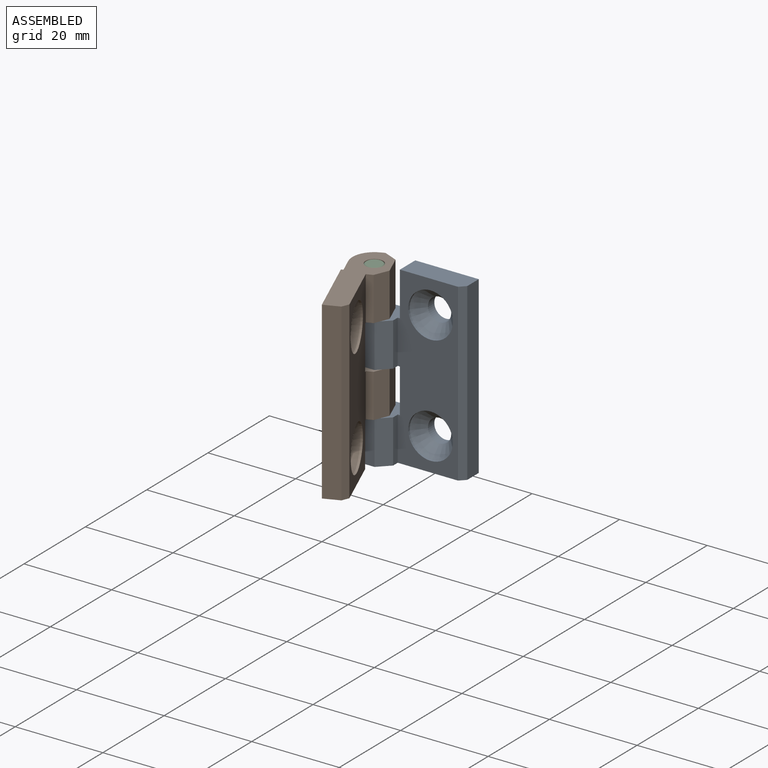
[diagram: assembled view]
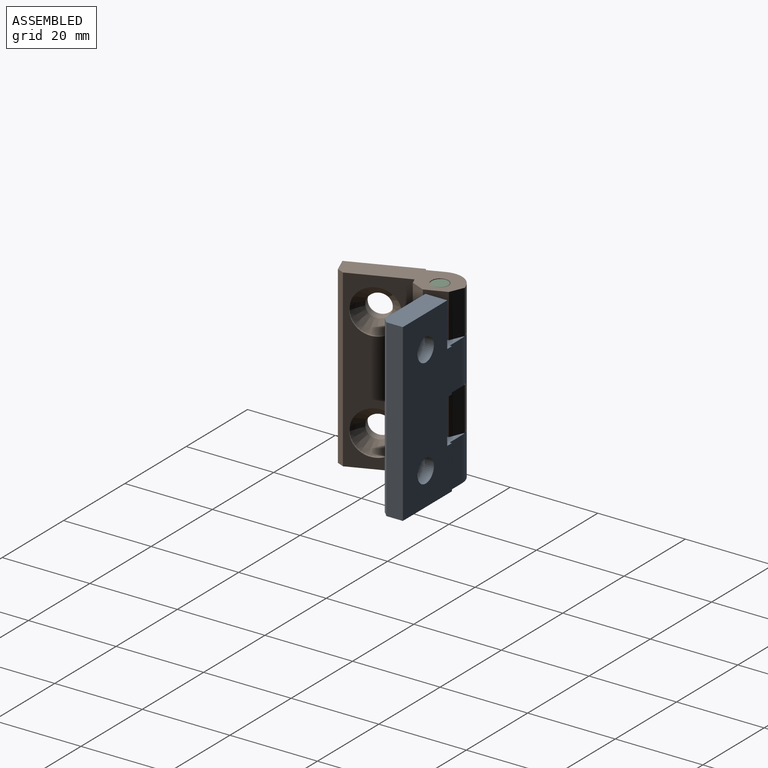
[diagram: assembled view, second angle]
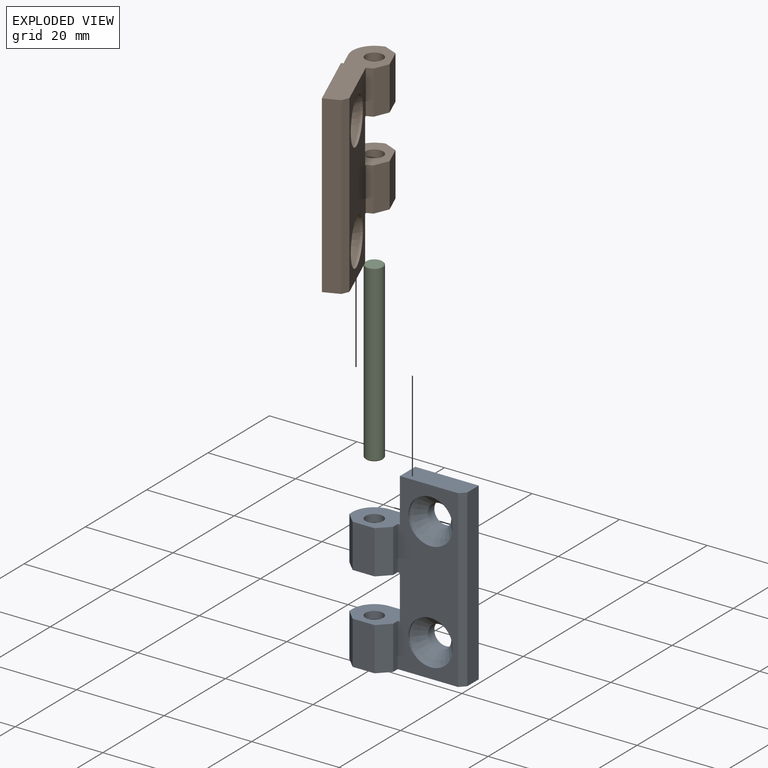
[diagram: exploded view]
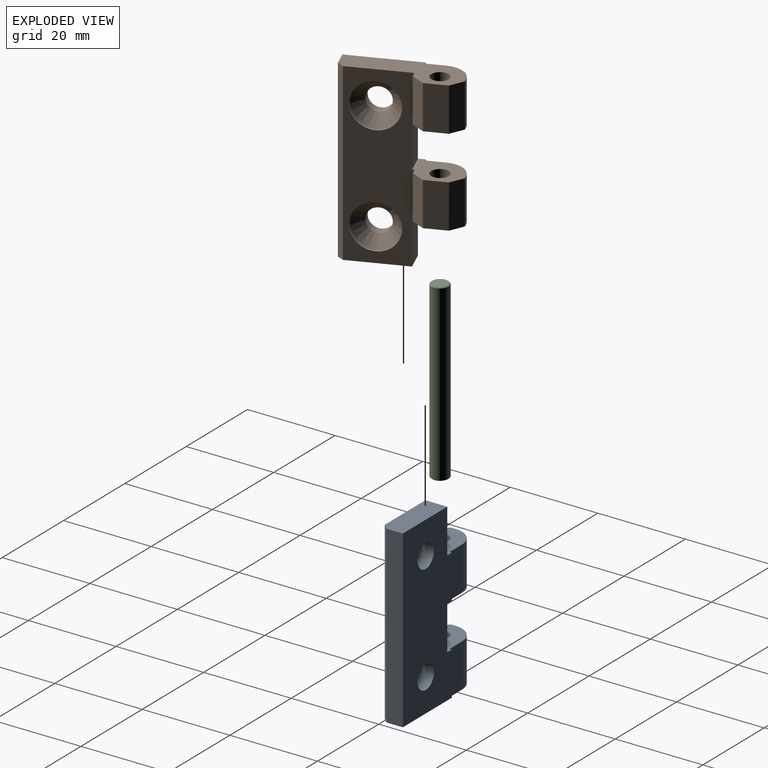
[diagram: exploded view, second angle]
ASSEMBLY  parts=3 mates=2
PART A: 35 faces, bbox 25x9x40 mm
  f0: cylinder r=2.65mm len=5.3mm, axis (0,-1,0), area 34.1mm2, adj f15,f33
  f1: cylinder r=2.65mm len=5.3mm, axis (0,-1,0), area 34.1mm2, adj f15,f31
  f2: cylinder r=5mm len=9.95mm, axis (0,0,1), area 78.1mm2, adj f4,f19,f26,f27
  f3: cylinder r=5mm len=9.95mm, axis (0,0,1), area 78.1mm2, adj f5,f20,f24,f28
  f4: plane 9.95x1mm, normal (-1,0,0), area 10mm2, adj f2,f6,f26,f27
  f5: plane 9.95x1mm, normal (-1,0,0), area 10mm2, adj f3,f7,f24,f28
  f6: plane 9.95x2.5mm, normal (-0.71,-0.71,0), area 35.2mm2, adj f4,f8,f26,f27
  f7: plane 9.95x2.5mm, normal (-0.71,-0.71,0), area 35.2mm2, adj f5,f9,f24,f28
  f8: plane 9.95x5mm, normal (0,-1,0), area 49.8mm2, adj f6,f10,f26,f27
  f9: plane 9.95x5mm, normal (0,-1,0), area 49.8mm2, adj f7,f11,f24,f28
  f10: plane 9.95x2.5mm, normal (0.71,-0.71,0), area 35.2mm2, adj f8,f12,f26,f27
  f11: plane 9.95x2.5mm, normal (0.71,-0.71,0), area 35.2mm2, adj f9,f13,f24,f28
  f12: plane 9.95x1.5mm, normal (1,0,0), area 14.9mm2, adj f10,f14,f26,f27
  f13: plane 9.95x1.5mm, normal (1,0,0), area 14.9mm2, adj f11,f14,f24,f28
  f14: plane 40x13.75mm, normal (0,-1,0), area 376.5mm2, adj f12,f13,f21,f22,f24,f25,f26,f27
  f15: plane 40x16mm, normal (0,1,0), area 565.7mm2, adj f0,f1,f16,f17,f21,f23,f24,f25
  f16: plane 9.95x0.5mm, normal (-1,0,0), area 5mm2, adj f15,f19,f26,f27
  f17: plane 9.95x0.5mm, normal (-1,0,0), area 5mm2, adj f15,f20,f24,f28
  f18: cylinder r=2mm len=9.95mm, axis (0,0,1), area 125mm2, adj f24,f28
  f19: plane 9.95x4mm, normal (0,1,0), area 39.8mm2, adj f2,f16,f26,f27
  f20: plane 9.95x4mm, normal (0,1,0), area 39.8mm2, adj f3,f17,f24,f28
  f21: plane 14.5x5mm, normal (0,0,1), area 71.7mm2, adj f14,f15,f22,f23,f25
  f22: plane 40x1.25mm, normal (0.71,-0.71,0), area 70.7mm2, adj f14,f21,f23,f24
  f23: plane 40x3.75mm, normal (1,0,0), area 150mm2, adj f15,f21,f22,f24
  f24: plane 25x9mm, normal (0,0,-1), area 135.5mm2, adj f3,f5,f7,f9,f11,f13,f14,f15
  f25: plane 10.05x5mm, normal (-1,0,0), area 50.2mm2, adj f14,f15,f21,f26
  f26: plane 10.5x9mm, normal (0,0,1), area 63.8mm2, adj f2,f4,f6,f8,f10,f12,f14,f15
  f27: plane 10.5x9mm, normal (0,0,-1), area 63.8mm2, adj f2,f4,f6,f8,f10,f12,f14,f15
  f28: plane 10.5x9mm, normal (0,0,1), area 63.8mm2, adj f3,f5,f7,f9,f11,f13,f14,f15
  f29: plane 10.05x5mm, normal (-1,0,0), area 50.2mm2, adj f14,f15,f27,f28
  f30: cylinder r=2mm len=9.95mm, axis (0,0,1), area 125mm2, adj f26,f27
  f31: cone r=2.65mm half-angle=45deg, axis (0,-1,0), area 84.4mm2, adj f1,f32
  f32: cylinder r=5.1mm len=10.2mm, axis (0,-1,0), area 16mm2, adj f14,f31
  f33: cone r=2.65mm half-angle=45deg, axis (0,-1,0), area 84.4mm2, adj f0,f34
  f34: cylinder r=5.1mm len=10.2mm, axis (0,-1,0), area 16mm2, adj f14,f33
PART B: 35 faces, bbox 25x9x40 mm
  f0: plane 40x16mm, normal (0,1,0), area 565.7mm2, adj f17,f18,f19,f20,f22,f23,f24,f25
  f1: plane 40x13.75mm, normal (0,-1,0), area 376.5mm2, adj f2,f3,f19,f21,f22,f23,f24,f25
  f2: plane 9.95x1.5mm, normal (-1,0,0), area 14.9mm2, adj f1,f4,f24,f25
  f3: plane 9.95x1.5mm, normal (-1,0,0), area 14.9mm2, adj f1,f5,f22,f26
  f4: plane 9.95x2.5mm, normal (-0.71,-0.71,0), area 35.2mm2, adj f2,f6,f24,f25
  f5: plane 9.95x2.5mm, normal (-0.71,-0.71,0), area 35.2mm2, adj f3,f7,f22,f26
  f6: plane 9.95x5mm, normal (0,-1,0), area 49.8mm2, adj f4,f8,f24,f25
  f7: plane 9.95x5mm, normal (0,-1,0), area 49.8mm2, adj f5,f9,f22,f26
  f8: plane 9.95x2.5mm, normal (0.71,-0.71,0), area 35.2mm2, adj f6,f10,f24,f25
  f9: plane 9.95x2.5mm, normal (0.71,-0.71,0), area 35.2mm2, adj f7,f11,f22,f26
  f10: plane 9.95x1mm, normal (1,0,0), area 10mm2, adj f8,f12,f24,f25
  f11: plane 9.95x1mm, normal (1,0,0), area 10mm2, adj f9,f13,f22,f26
  f12: cylinder r=5mm len=9.95mm, axis (0,0,1), area 78.1mm2, adj f10,f14,f24,f25
  f13: cylinder r=5mm len=9.95mm, axis (0,0,1), area 78.1mm2, adj f11,f15,f22,f26
  f14: plane 9.95x4mm, normal (0,1,0), area 39.8mm2, adj f12,f17,f24,f25
  f15: plane 9.95x4mm, normal (0,1,0), area 39.8mm2, adj f13,f18,f22,f26
  f16: cylinder r=2mm len=9.95mm, axis (0,0,1), area 125mm2, adj f22,f26
  f17: plane 9.95x0.5mm, normal (1,0,0), area 5mm2, adj f0,f14,f24,f25
  f18: plane 9.95x0.5mm, normal (1,0,0), area 5mm2, adj f0,f15,f22,f26
  f19: plane 14.5x5mm, normal (0,0,-1), area 71.7mm2, adj f0,f1,f20,f21,f23
  f20: plane 40x3.75mm, normal (-1,0,0), area 150mm2, adj f0,f19,f21,f22
  f21: plane 40x1.25mm, normal (-0.71,-0.71,0), area 70.7mm2, adj f1,f19,f20,f22
  f22: plane 25x9mm, normal (0,0,1), area 135.5mm2, adj f0,f1,f3,f5,f7,f9,f11,f13
  f23: plane 10.05x5mm, normal (1,0,0), area 50.2mm2, adj f0,f1,f19,f24
  f24: plane 10.5x9mm, normal (0,0,-1), area 63.8mm2, adj f0,f1,f2,f4,f6,f8,f10,f12
  f25: plane 10.5x9mm, normal (0,0,1), area 63.8mm2, adj f0,f1,f2,f4,f6,f8,f10,f12
  f26: plane 10.5x9mm, normal (0,0,-1), area 63.8mm2, adj f0,f1,f3,f5,f7,f9,f11,f13
  f27: plane 10.05x5mm, normal (1,0,0), area 50.2mm2, adj f0,f1,f25,f26
  f28: cylinder r=2mm len=9.95mm, axis (0,0,1), area 125mm2, adj f24,f25
  f29: cylinder r=2.65mm len=5.3mm, axis (0,-1,0), area 34.1mm2, adj f0,f30
  f30: cone r=2.65mm half-angle=45deg, axis (0,-1,0), area 84.4mm2, adj f29,f31
  f31: cylinder r=5.1mm len=10.2mm, axis (0,-1,0), area 16mm2, adj f1,f30
  f32: cylinder r=2.65mm len=5.3mm, axis (0,-1,0), area 34.1mm2, adj f0,f33
  f33: cone r=2.65mm half-angle=45deg, axis (0,-1,0), area 84.4mm2, adj f32,f34
  f34: cylinder r=5.1mm len=10.2mm, axis (0,-1,0), area 16mm2, adj f1,f33
PART C: 5 faces, bbox 4x4x40 mm
  f0: plane 3.6x3.6mm, normal (0,0,1), area 10.2mm2, adj f1
  f1: cone r=1.8mm half-angle=45deg, axis (0,0,-1), area 3.4mm2, adj f0,f2
  f2: cylinder r=2mm len=39.6mm, axis (0,0,-1), area 497.6mm2, adj f1,f3
  f3: cone r=2mm half-angle=45deg, axis (0,0,1), area 3.4mm2, adj f2,f4
  f4: plane 3.6x3.6mm, normal (0,0,-1), area 10.2mm2, adj f3
PLACE A at identity fixed
PLACE B rot(axis=(0,0,1),112.1deg) t=(0,0,0)mm
PLACE C at identity
MATE revolute C.f1 <-> B.f12  axis (0,0,1) through (0,0,0)mm
MATE fastened A.f18 <-> C.f1  axis (0,0,-1) through (0,0,-40)mm
